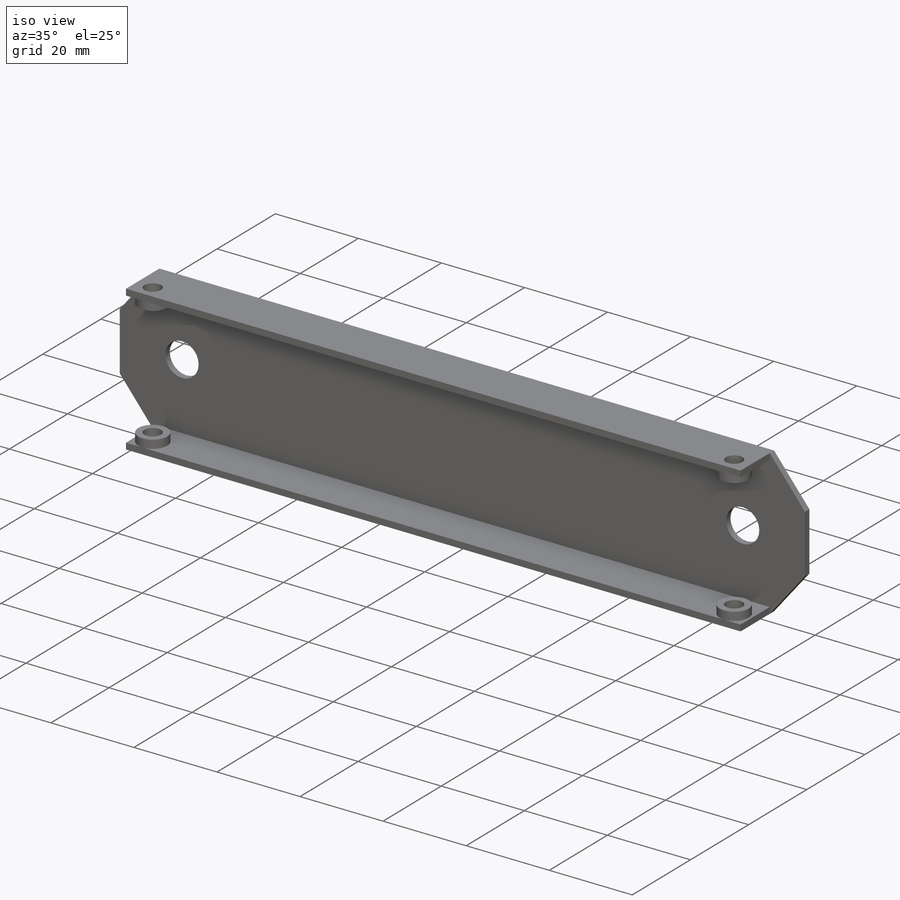
[diagram: iso view]
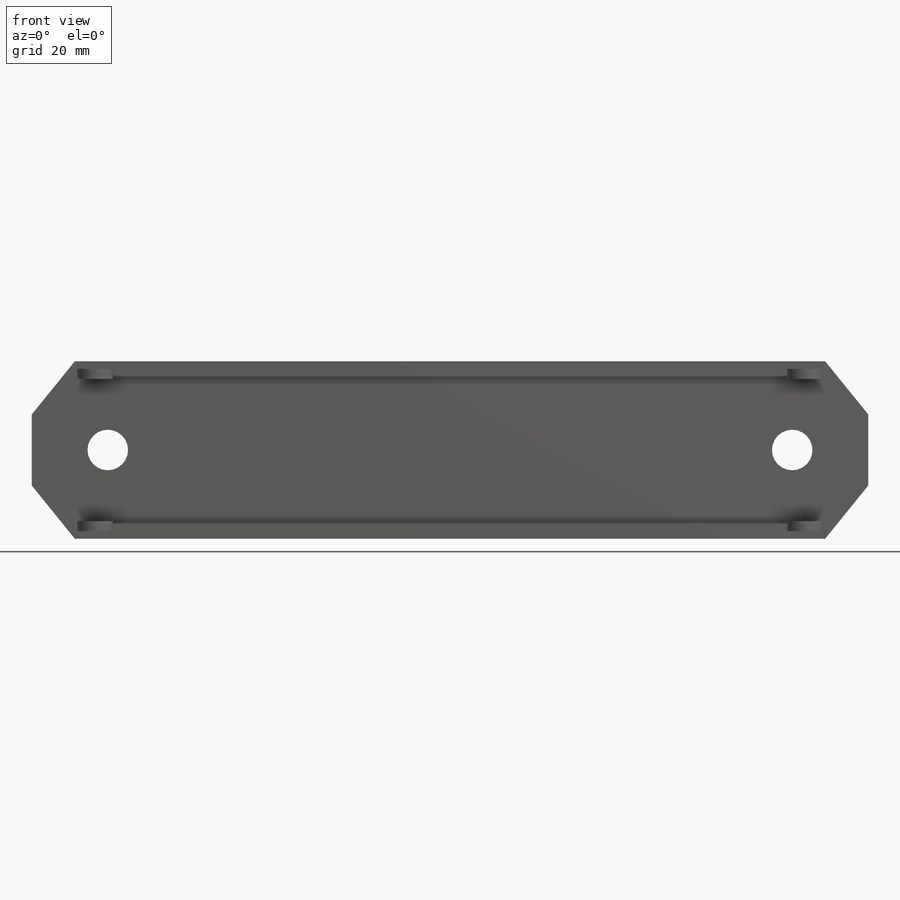
[diagram: front view]
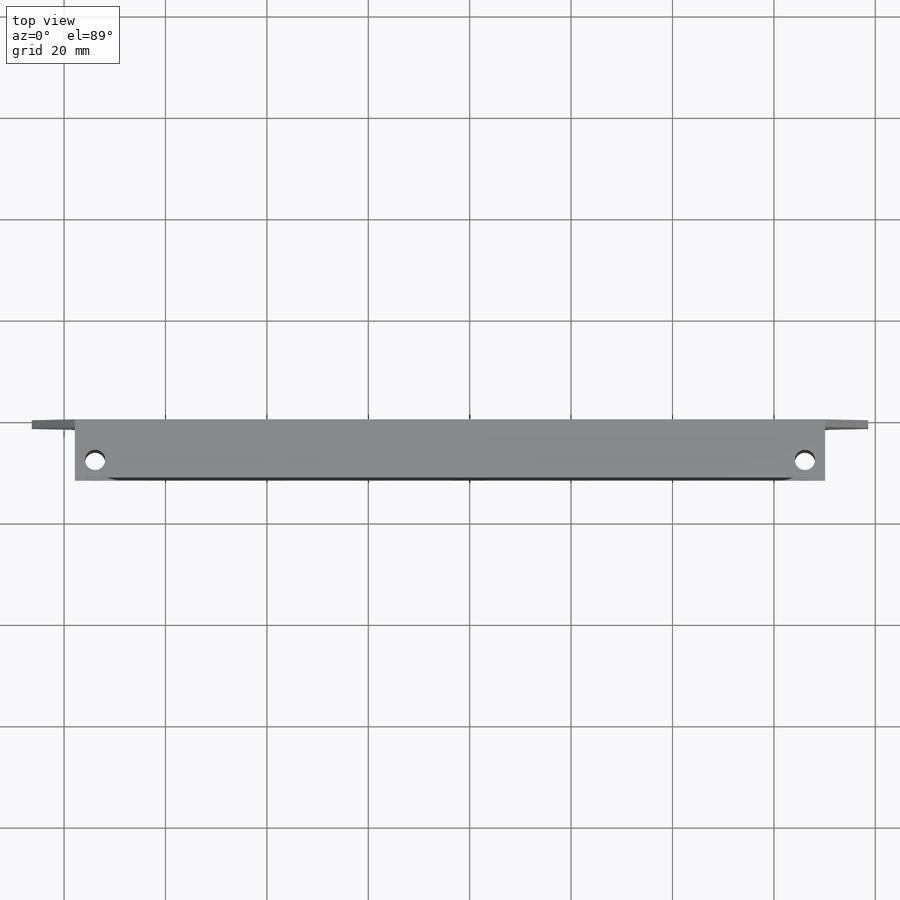
[diagram: top view]
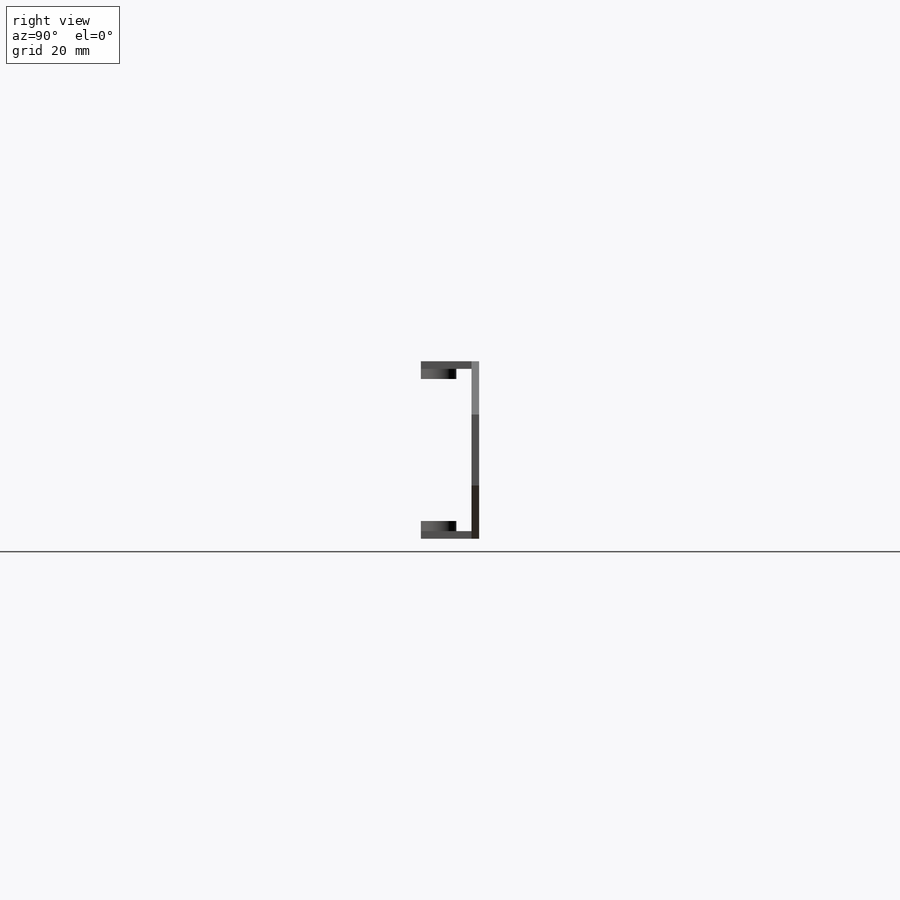
[diagram: right view]
SOLIDWORKS PART (.sldprt)
format: sldprt  version: not decoded by parser v0  size: 316,928 bytes
history: native  units: mm
features: sketch x15, cut_extrude x8, extrude x7, plane x3, material x1 (+10 scaffold rows collapsed)
feature tree (44):
  scaffold x10  (default folders/planes/origin — collapsed)
  material  "Material <sin especificar>"
  plane  "Alzado"
  plane  "Planta"
  plane  "Vista lateral"
  sketch  "Croquis1"  dims[c1.D2=~7.190193mm c1.D1=35.0mm c2.D2=148.0mm c2.D1=14.0mm c3.D2=9.0mm c3.D3=~7.565794mm c4.D2=8.5mm c4.D3=8.5mm c4.D4=10.5mm c4.D5=10.5mm c4.D6=165.0mm]
  extrude  "Saliente-Extruir1"  Depth=1.5mm
  sketch  "Croquis4"  dims[c1.D1=1.5mm c1.D2=1.5mm c2.D2=90.0deg c3.D2=1.5mm]
  extrude  "Saliente-Extruir2"  Depth=10mm
  sketch  "Croquis5"  dims[D1=1.5mm D2=1.5mm]
  extrude  "Saliente-Extruir3"  Depth=10mm
  sketch  "Croquis6"  dims[c1.D1=4.0mm c1.D4=4.0mm c1.D2=4.0mm c1.D3=~4.231245mm c2.D3=90.0deg c3.D3=8.0mm c3.D5=8.0mm c3.D6=4.0mm]
  cut_extrude  "Cortar-Extruir6"  Depth=3.5mm
  sketch  "Croquis9"  dims[D1=7.0mm]
  extrude  "Saliente-Extruir5"  Depth=2mm
  sketch  "Croquis11"  dims[D1=4.0mm]
  cut_extrude  "Cortar-Extruir7"  Depth=2mm
  sketch  "Croquis12"  dims[D1=7.0mm]
  extrude  "Saliente-Extruir6"  Depth=2mm
  sketch  "Croquis13"  dims[D1=4.0mm]
  cut_extrude  "Cortar-Extruir8"  Depth=2mm
  sketch  "Croquis14"  dims[c1.D1=4.0mm c1.D3=4.0mm c2.D1=8.0mm c2.D2=4.0mm]
  cut_extrude  "Cortar-Extruir9"  [1 undecoded]
  sketch  "Croquis15"  dims[D1=7.0mm]
  extrude  "Saliente-Extruir7"  Depth=2mm
  sketch  "Croquis16"  dims[D1=4.0mm]
  cut_extrude  "Cortar-Extruir10"  Depth=2mm
  sketch  "Croquis17"  dims[D1=4.0mm D2=4.0mm D3=8.0mm]
  cut_extrude  "Cortar-Extruir11"  [1 undecoded]
  sketch  "Croquis18"  dims[D1=7.0mm]
  extrude  "Saliente-Extruir8"  Depth=2mm
  sketch  "Croquis19"  dims[D1=4.0mm]
  cut_extrude  "Cortar-Extruir12"  Depth=2mm
  sketch  "Croquis20"  dims[c1.D1=~10.621964mm c1.D2=8.0mm c1.D3=8.0mm c1.D4=8.0mm c2.D1=15.0mm c2.D3=15.0mm c2.D4=17.5mm c2.D5=17.5mm]
  cut_extrude  "Cortar-Extruir13"  [1 undecoded]
decode coverage: 27 of 30 modeling features carry decoded parameters
note: ~ marks probable driven/reference dimensions
note: 3 parameter values undecoded
summary: no parameter record found for 3 features
note: suppression state not decoded; provenance and decode notes live in map.json
